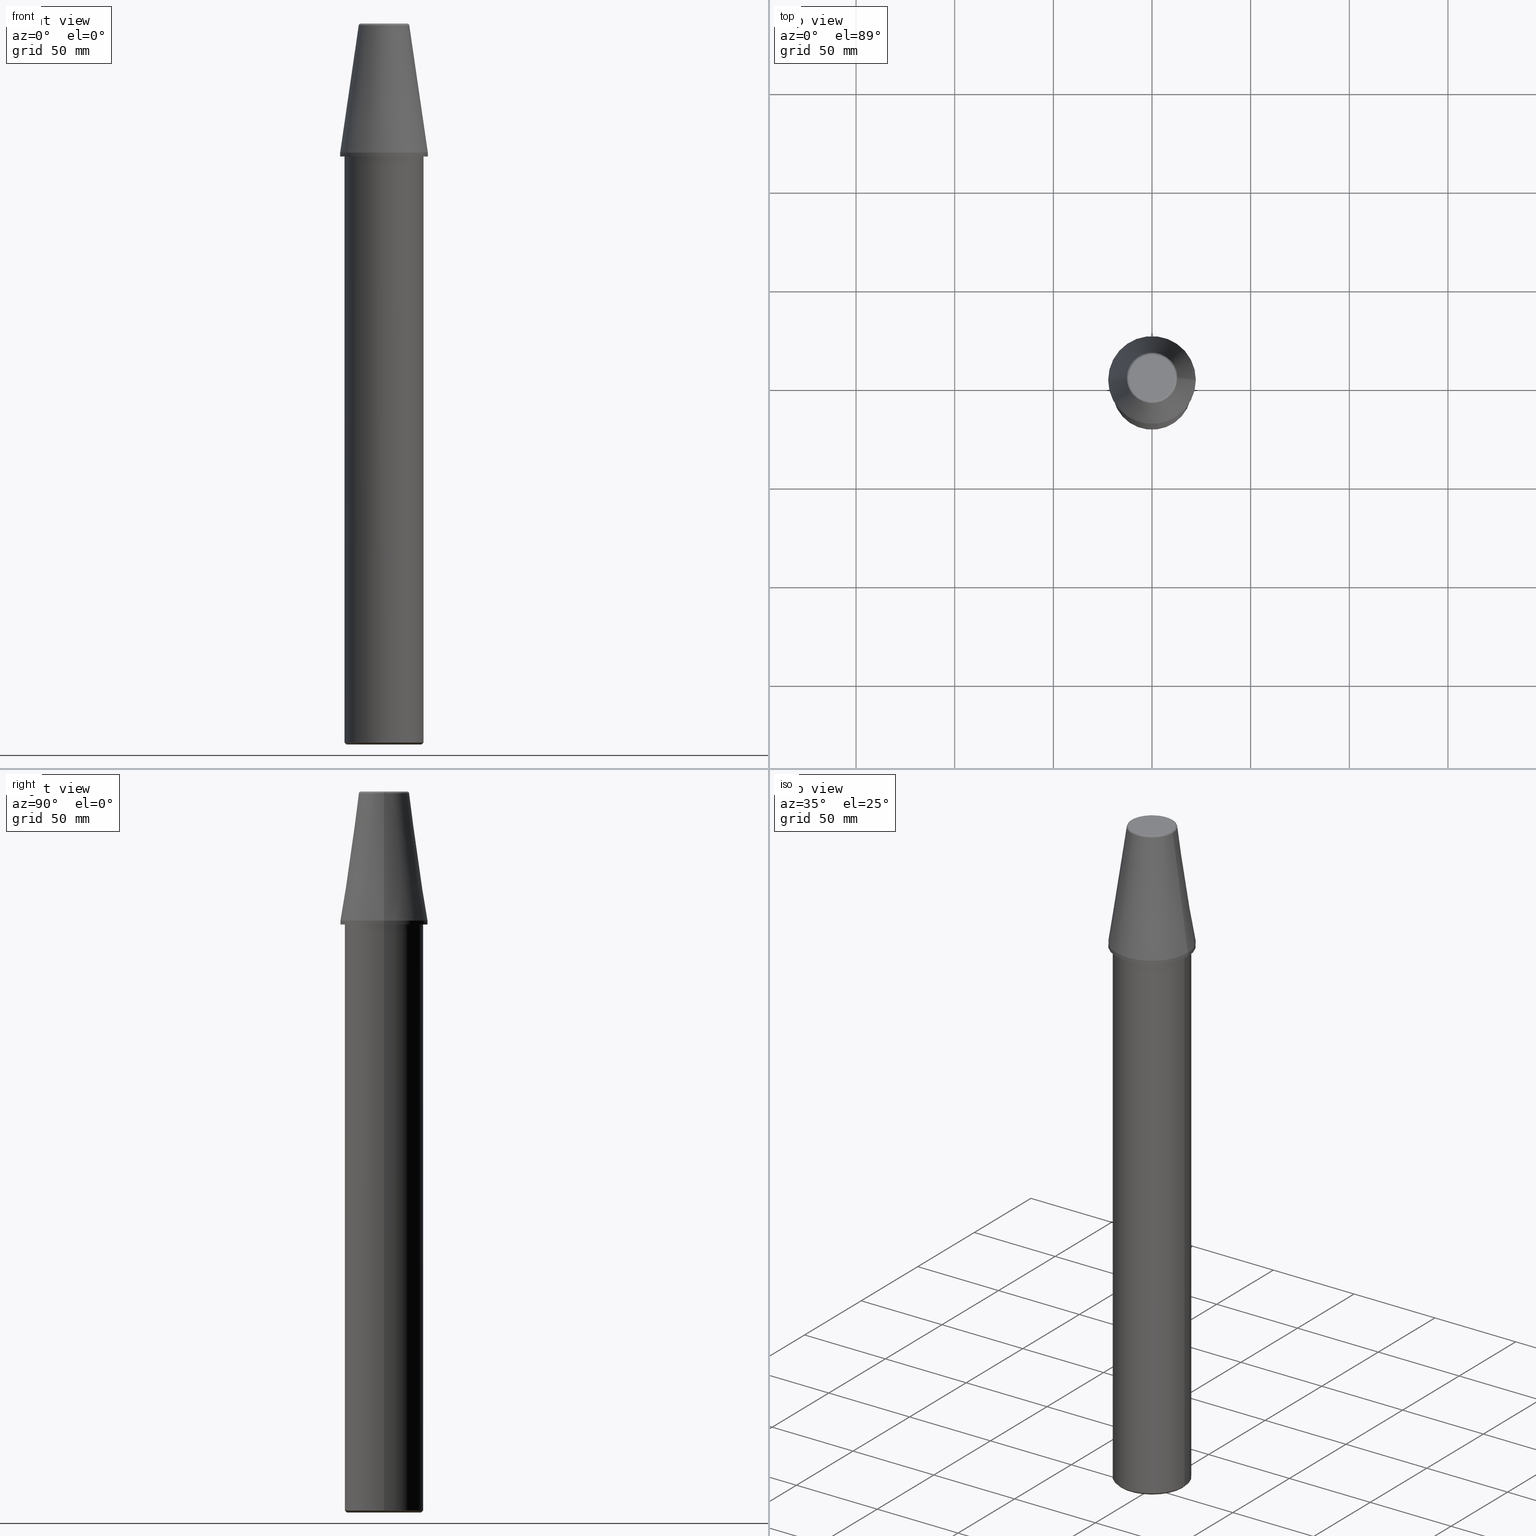
[diagram: canonical four-view strip — front | top / right | iso, engineering-drawing reading convention]
A machine part, canonical four-view strip (front | top / right | iso — engineering-drawing reading convention). The complete STEP part file that produces these views, byte-faithful:
ISO-10303-21;
HEADER;
FILE_DESCRIPTION (( 'STEP AP203' ),
    '1' );
FILE_NAME ('BT40 MASTER MANDRELL DIA 40 L 300.STEP',
    '2019-05-24T06:16:30',
    ( '' ),
    ( '' ),
    'SwSTEP 2.0',
    'SolidWorks 2014',
    '' );
FILE_SCHEMA (( 'CONFIG_CONTROL_DESIGN' ));
ENDSEC;

DATA;
#1 = ORIENTED_EDGE ( 'NONE', *, *, #345, .T. ) ;
#2 = ORIENTED_EDGE ( 'NONE', *, *, #176, .F. ) ;
#3 = LINE ( 'NONE', #332, #277 ) ;
#4 = VECTOR ( 'NONE', #151, 1000.000000000000000 ) ;
#5 = ORIENTED_EDGE ( 'NONE', *, *, #78, .F. ) ;
#6 = CONICAL_SURFACE ( 'NONE', #407, 20.00000000000000000, 0.7853981633974485000 ) ;
#7 = ORIENTED_EDGE ( 'NONE', *, *, #40, .F. ) ;
#8 = CALENDAR_DATE ( 2019, 24, 5 ) ;
#9 = CALENDAR_DATE ( 2019, 24, 5 ) ;
#10 = CONICAL_SURFACE ( 'NONE', #218, 22.22500000000000100, 0.1448138077659779600 ) ;
#11 = ADVANCED_FACE ( 'NONE', ( #112 ), #220, .T. ) ;
#12 = EDGE_CURVE ( 'NONE', #268, #49, #290, .T. ) ;
#13 = PERSON_AND_ORGANIZATION ( #300, #311 ) ;
#14 = ORIENTED_EDGE ( 'NONE', *, *, #236, .F. ) ;
#15 = ORIENTED_EDGE ( 'NONE', *, *, #92, .T. ) ;
#16 = LINE ( 'NONE', #122, #405 ) ;
#17 = VERTEX_POINT ( 'NONE', #385 ) ;
#18 = APPROVAL_ROLE ( '' ) ;
#19 = COORDINATED_UNIVERSAL_TIME_OFFSET ( 5, 30, .AHEAD. ) ;
#20 = APPROVAL_STATUS ( 'not_yet_approved' ) ;
#21 = DESIGN_CONTEXT ( 'detailed design', #48, 'design' ) ;
#22 =( BOUNDED_CURVE ( )  B_SPLINE_CURVE ( 3, ( #379, #180, #285, #376 ),
 .UNSPECIFIED., .F., .F. ) 
 B_SPLINE_CURVE_WITH_KNOTS ( ( 4, 4 ),
 ( 0.06744229189386269400, 0.9325577098212907100 ),
 .UNSPECIFIED. ) 
 CURVE ( )  GEOMETRIC_REPRESENTATION_ITEM ( )  RATIONAL_B_SPLINE_CURVE ( ( 0.9606698244209219700, 0.8046626051633187800, 0.8046626054726142600, 0.9606698253488084000 ) ) 
 REPRESENTATION_ITEM ( '' )  );
#23 = VERTEX_POINT ( 'NONE', #388 ) ;
#24 = DATE_TIME_ROLE ( 'classification_date' ) ;
#25 = FACE_OUTER_BOUND ( 'NONE', #282, .T. ) ;
#26 = CIRCLE ( 'NONE', #162, 20.00000000000000000 ) ;
#27 = UNCERTAINTY_MEASURE_WITH_UNIT (LENGTH_MEASURE( 1.000000000000000100E-005 ), #69, 'distance_accuracy_value', 'NONE');
#28 = PERSON_AND_ORGANIZATION_ROLE ( 'classification_officer' ) ;
#29 = SECURITY_CLASSIFICATION_LEVEL ( 'unclassified' ) ;
#30 = ORIENTED_EDGE ( 'NONE', *, *, #105, .F. ) ;
#31 = PERSON_AND_ORGANIZATION_ROLE ( 'design_supplier' ) ;
#32 = EDGE_LOOP ( 'NONE', ( #79, #411, #173, #90 ) ) ;
#33 = PERSON_AND_ORGANIZATION_ROLE ( 'creator' ) ;
#34 = ORIENTED_EDGE ( 'NONE', *, *, #279, .T. ) ;
#35 = LOCAL_TIME ( 11, 46, 30.00000000000000000, #19 ) ;
#36 = APPROVAL_ROLE ( '' ) ;
#37 = APPROVAL_STATUS ( 'not_yet_approved' ) ;
#38 = VERTEX_POINT ( 'NONE', #384 ) ;
#39 = DATE_TIME_ROLE ( 'creation_date' ) ;
#40 = EDGE_CURVE ( 'NONE', #23, #49, #22, .T. ) ;
#41 = PERSON_AND_ORGANIZATION_ROLE ( 'creator' ) ;
#42 = APPROVAL_PERSON_ORGANIZATION ( #13, #109, #44 ) ;
#43 = FACE_OUTER_BOUND ( 'NONE', #159, .T. ) ;
#44 = APPROVAL_ROLE ( '' ) ;
#45 = APPROVAL_STATUS ( 'not_yet_approved' ) ;
#46 = ADVANCED_FACE ( 'NONE', ( #154 ), #395, .T. ) ;
#47 = APPLICATION_PROTOCOL_DEFINITION ( 'international standard', 'config_control_design', 1994, #48 ) ;
#48 = APPLICATION_CONTEXT ( 'configuration controlled 3d designs of mechanical parts and assemblies' ) ;
#49 = VERTEX_POINT ( 'NONE', #366 ) ;
#50 = CYLINDRICAL_SURFACE ( 'NONE', #423, 20.00000000000000000 ) ;
#51 = PERSON_AND_ORGANIZATION_ROLE ( 'design_owner' ) ;
#52 = MECHANICAL_CONTEXT ( 'NONE', #58, 'mechanical' ) ;
#53 = DIRECTION ( 'NONE',  ( -1.000000000000000000, 0.0000000000000000000, 0.0000000000000000000 ) ) ;
#54 = VECTOR ( 'NONE', #207, 1000.000000000000000 ) ;
#55 = DATE_AND_TIME ( #264, #35 ) ;
#56 = DIRECTION ( 'NONE',  ( 1.000000000000000000, 0.0000000000000000000, 0.0000000000000000000 ) ) ;
#57 = VECTOR ( 'NONE', #350, 999.9999999999998900 ) ;
#58 = APPLICATION_CONTEXT ( 'configuration controlled 3d designs of mechanical parts and assemblies' ) ;
#59 = PERSON_AND_ORGANIZATION ( #300, #311 ) ;
#60 = APPLICATION_PROTOCOL_DEFINITION ( 'international standard', 'config_control_design', 1994, #58 ) ;
#61 = ORIENTED_EDGE ( 'NONE', *, *, #382, .F. ) ;
#62 =( NAMED_UNIT ( * ) SI_UNIT ( $, .STERADIAN. ) SOLID_ANGLE_UNIT ( ) );
#63 = VERTEX_POINT ( 'NONE', #135 ) ;
#64 =( NAMED_UNIT ( * ) PLANE_ANGLE_UNIT ( ) SI_UNIT ( $, .RADIAN. ) );
#65 = ORIENTED_EDGE ( 'NONE', *, *, #386, .T. ) ;
#66 = CIRCLE ( 'NONE', #427, 12.81220206894352900 ) ;
#67 = CARTESIAN_POINT ( 'NONE',  ( 0.0000000000000000000, 0.0000000000000000000, 1.000000000000000400 ) ) ;
#68 = APPROVAL_DATE_TIME ( #55, #125 ) ;
#69 =( LENGTH_UNIT ( ) NAMED_UNIT ( * ) SI_UNIT ( .MILLI., .METRE. ) );
#70 = CIRCLE ( 'NONE', #187, 22.22499999999999800 ) ;
#71 = ORIENTED_EDGE ( 'NONE', *, *, #76, .T. ) ;
#72 = DIRECTION ( 'NONE',  ( -1.000000000000000000, 0.0000000000000000000, 0.0000000000000000000 ) ) ;
#73 = DIRECTION ( 'NONE',  ( 0.0000000000000000000, 0.0000000000000000000, -1.000000000000000000 ) ) ;
#74 = CARTESIAN_POINT ( 'NONE',  ( 0.0000000000000000000, 0.0000000000000000000, 300.0000000000000600 ) ) ;
#75 = COORDINATED_UNIVERSAL_TIME_OFFSET ( 5, 30, .AHEAD. ) ;
#76 = EDGE_CURVE ( 'NONE', #49, #268, #93, .T. ) ;
#77 = CARTESIAN_POINT ( 'NONE',  ( 0.0000000000000000000, 0.0000000000000000000, 298.0000000000000000 ) ) ;
#78 = EDGE_CURVE ( 'NONE', #215, #342, #168, .T. ) ;
#79 = ORIENTED_EDGE ( 'NONE', *, *, #176, .T. ) ;
#80 = CARTESIAN_POINT ( 'NONE',  ( -12.81220206913550700, 0.0000000000000000000, 364.5443081893797600 ) ) ;
#81 = CARTESIAN_POINT ( 'NONE',  ( -12.73707373894168000, 0.0000000000000000000, 365.0594691596318200 ) ) ;
#82 = ADVANCED_FACE ( 'NONE', ( #138 ), #254, .T. ) ;
#83 = AXIS2_PLACEMENT_3D ( 'NONE', #360, #348, #367 ) ;
#84 = CARTESIAN_POINT ( 'NONE',  ( -11.82266927519743800, 0.0000000000000000000, 365.3999999998375200 ) ) ;
#85 = VECTOR ( 'NONE', #170, 999.9999999999998900 ) ;
#86 = CARTESIAN_POINT ( 'NONE',  ( 22.22499999999999400, 2.721777511104991700E-015, 300.0000000000000600 ) ) ;
#87 = EDGE_CURVE ( 'NONE', #413, #325, #416, .T. ) ;
#88 = CARTESIAN_POINT ( 'NONE',  ( 0.0000000000000000000, 0.0000000000000000000, 0.0000000000000000000 ) ) ;
#89 = FACE_OUTER_BOUND ( 'NONE', #328, .T. ) ;
#90 = ORIENTED_EDGE ( 'NONE', *, *, #95, .F. ) ;
#91 = CARTESIAN_POINT ( 'NONE',  ( -12.34327958154977800, 0.0000000000000000000, 365.4000000010086600 ) ) ;
#92 = EDGE_CURVE ( 'NONE', #315, #63, #419, .T. ) ;
#93 =( BOUNDED_CURVE ( )  B_SPLINE_CURVE ( 3, ( #372, #362, #357, #356 ),
 .UNSPECIFIED., .F., .F. ) 
 B_SPLINE_CURVE_WITH_KNOTS ( ( 4, 4 ),
 ( 0.0000000000000000000, 1.000000000000000000 ),
 .UNSPECIFIED. ) 
 CURVE ( )  GEOMETRIC_REPRESENTATION_ITEM ( )  RATIONAL_B_SPLINE_CURVE ( ( 0.9606698253833687600, 0.3202232751277893100, 0.3202232751277893100, 0.9606698253833687600 ) ) 
 REPRESENTATION_ITEM ( '' )  );
#94 = DIRECTION ( 'NONE',  ( 0.0000000000000000000, 0.0000000000000000000, -1.000000000000000000 ) ) ;
#95 = EDGE_CURVE ( 'NONE', #17, #325, #3, .T. ) ;
#96 = CARTESIAN_POINT ( 'NONE',  ( 11.72283586100000000, 0.0000000000000000000, 365.3950041649999900 ) ) ;
#97 = LINE ( 'NONE', #146, #4 ) ;
#98 = CARTESIAN_POINT ( 'NONE',  ( 11.72283586100000000, 23.44567172100000700, 365.3950041649999900 ) ) ;
#99 =( BOUNDED_CURVE ( )  B_SPLINE_CURVE ( 3, ( #84, #91, #81, #80 ),
 .UNSPECIFIED., .F., .T. ) 
 B_SPLINE_CURVE_WITH_KNOTS ( ( 4, 4 ),
 ( 0.06744229017870560800, 0.9325577080596414400 ),
 .UNSPECIFIED. ) 
 CURVE ( )  GEOMETRIC_REPRESENTATION_ITEM ( )  RATIONAL_B_SPLINE_CURVE ( ( 0.9606698254473287100, 0.8046626055635183200, 0.8046626052458375500, 0.9606698244942861700 ) ) 
 REPRESENTATION_ITEM ( '' )  );
#100 = CARTESIAN_POINT ( 'NONE',  ( -11.72283586100000000, 23.44567172100000700, 365.3950041649999900 ) ) ;
#101 = CARTESIAN_POINT ( 'NONE',  ( -11.72283586100000000, 0.0000000000000000000, 365.3950041649999900 ) ) ;
#102 = AXIS2_PLACEMENT_3D ( 'NONE', #335, #334, #333 ) ;
#103 = CARTESIAN_POINT ( 'NONE',  ( 12.33152797700000600, 0.0000000000000000000, 365.4560770889999600 ) ) ;
#104 = CARTESIAN_POINT ( 'NONE',  ( 12.33152797699999900, 24.66305595500000800, 365.4560770889999600 ) ) ;
#105 = EDGE_CURVE ( 'NONE', #342, #396, #370, .T. ) ;
#106 = EDGE_CURVE ( 'NONE', #409, #38, #70, .T. ) ;
#107 = PERSON_AND_ORGANIZATION ( #300, #311 ) ;
#108 = CARTESIAN_POINT ( 'NONE',  ( -12.33152797700000600, 0.0000000000000000000, 365.4560770889999600 ) ) ;
#109 = APPROVAL ( #45, 'UNSPECIFIED' ) ;
#110 = CARTESIAN_POINT ( 'NONE',  ( 12.79425971100000400, 0.0000000000000000000, 365.0559329419999700 ) ) ;
#111 = CARTESIAN_POINT ( 'NONE',  ( 12.79425971099999900, 25.58851942100000800, 365.0559329419998600 ) ) ;
#112 = FACE_OUTER_BOUND ( 'NONE', #260, .T. ) ;
#113 = CARTESIAN_POINT ( 'NONE',  ( -12.79425971099999900, 25.58851942100000800, 365.0559329419998600 ) ) ;
#114 = PERSON_AND_ORGANIZATION ( #300, #311 ) ;
#115 = CARTESIAN_POINT ( 'NONE',  ( -12.79425971100000400, 0.0000000000000000000, 365.0559329419999700 ) ) ;
#116 = CARTESIAN_POINT ( 'NONE',  ( 12.82166530700000000, 0.0000000000000000000, 364.4447988100000100 ) ) ;
#117 = CARTESIAN_POINT ( 'NONE',  ( 12.82166530699999800, 25.64333061300000000, 364.4447988100000100 ) ) ;
#118 = PRODUCT_DEFINITION ( 'UNKNOWN', '', #147, #21 ) ;
#119 = CARTESIAN_POINT ( 'NONE',  ( -12.82166530699999800, 25.64333061300000000, 364.4447988100000100 ) ) ;
#120 = CC_DESIGN_PERSON_AND_ORGANIZATION_ASSIGNMENT ( #397, #41, ( #118 ) ) ;
#121 = DIRECTION ( 'NONE',  ( 0.0000000000000000000, 0.0000000000000000000, -1.000000000000000000 ) ) ;
#122 = CARTESIAN_POINT ( 'NONE',  ( -22.22499999999999800, 0.0000000000000000000, 300.0000000000000000 ) ) ;
#123 = ORIENTED_EDGE ( 'NONE', *, *, #336, .F. ) ;
#124 = CARTESIAN_POINT ( 'NONE',  ( 20.00000000000000000, 0.0000000000000000000, 1.000000000000000900 ) ) ;
#125 = APPROVAL ( #37, 'UNSPECIFIED' ) ;
#126 = ORIENTED_EDGE ( 'NONE', *, *, #95, .T. ) ;
#127 = CYLINDRICAL_SURFACE ( 'NONE', #283, 20.00000000000000000 ) ;
#128 = AXIS2_PLACEMENT_3D ( 'NONE', #206, #205, #203 ) ;
#129 = CARTESIAN_POINT ( 'NONE',  ( 22.22499999999999800, 2.721777511104992500E-015, 297.9999999999999400 ) ) ;
#130 = ADVANCED_FACE ( 'NONE', ( #424 ), #324, .T. ) ;
#131 = CALENDAR_DATE ( 2019, 24, 5 ) ;
#132 = FACE_BOUND ( 'NONE', #417, .T. ) ;
#133 = CARTESIAN_POINT ( 'NONE',  ( -12.82166530700000000, 0.0000000000000000000, 364.4447988100000100 ) ) ;
#134 = DIRECTION ( 'NONE',  ( -1.000000000000000000, 0.0000000000000000000, 0.0000000000000000000 ) ) ;
#135 = CARTESIAN_POINT ( 'NONE',  ( -20.00000000000000000, 0.0000000000000000000, 297.9999999999999400 ) ) ;
#136 = DIRECTION ( 'NONE',  ( 0.0000000000000000000, 0.0000000000000000000, -1.000000000000000000 ) ) ;
#137 = DIRECTION ( 'NONE',  ( 1.000000000000000000, 0.0000000000000000000, 0.0000000000000000000 ) ) ;
#138 = FACE_OUTER_BOUND ( 'NONE', #406, .T. ) ;
#139 = EDGE_CURVE ( 'NONE', #396, #342, #421, .T. ) ;
#140 = EDGE_LOOP ( 'NONE', ( #364, #242 ) ) ;
#141 = DIRECTION ( 'NONE',  ( 0.0000000000000000000, 0.0000000000000000000, 1.000000000000000000 ) ) ;
#142 = CARTESIAN_POINT ( 'NONE',  ( 0.0000000000000000000, 0.0000000000000000000, 0.0000000000000000000 ) ) ;
#143 = CIRCLE ( 'NONE', #422, 22.22499999999999800 ) ;
#144 = ORIENTED_EDGE ( 'NONE', *, *, #139, .T. ) ;
#145 = CARTESIAN_POINT ( 'NONE',  ( 0.0000000000000000000, 0.0000000000000000000, 300.0000000000000000 ) ) ;
#146 = CARTESIAN_POINT ( 'NONE',  ( 22.22499999999999800, 2.721777511104992500E-015, 300.0000000000000000 ) ) ;
#147 = PRODUCT_DEFINITION_FORMATION_WITH_SPECIFIED_SOURCE ( 'ANY', '', #222, .NOT_KNOWN. ) ;
#148 = ORIENTED_EDGE ( 'NONE', *, *, #78, .T. ) ;
#149 = VECTOR ( 'NONE', #303, 1000.000000000000100 ) ;
#150 = LOCAL_TIME ( 11, 46, 30.00000000000000000, #352 ) ;
#151 = DIRECTION ( 'NONE',  ( 0.0000000000000000000, 0.0000000000000000000, -1.000000000000000000 ) ) ;
#152 = LINE ( 'NONE', #183, #85 ) ;
#153 = AXIS2_PLACEMENT_3D ( 'NONE', #202, #213, #201 ) ;
#154 = FACE_OUTER_BOUND ( 'NONE', #361, .T. ) ;
#155 = DIRECTION ( 'NONE',  ( -1.000000000000000000, 0.0000000000000000000, -0.0000000000000000000 ) ) ;
#156 = ORIENTED_EDGE ( 'NONE', *, *, #167, .F. ) ;
#157 = AXIS2_PLACEMENT_3D ( 'NONE', #298, #297, #296 ) ;
#158 = DIRECTION ( 'NONE',  ( 0.0000000000000000000, 0.0000000000000000000, -1.000000000000000000 ) ) ;
#159 = EDGE_LOOP ( 'NONE', ( #217, #65, #371, #408 ) ) ;
#160 = DIRECTION ( 'NONE',  ( -1.000000000000000000, 0.0000000000000000000, 0.0000000000000000000 ) ) ;
#161 = CC_DESIGN_PERSON_AND_ORGANIZATION_ASSIGNMENT ( #190, #28, ( #169 ) ) ;
#162 = AXIS2_PLACEMENT_3D ( 'NONE', #178, #177, #175 ) ;
#163 = DIRECTION ( 'NONE',  ( 0.0000000000000000000, 0.0000000000000000000, -1.000000000000000000 ) ) ;
#164 = EDGE_LOOP ( 'NONE', ( #306, #7, #2, #245 ) ) ;
#165 = CARTESIAN_POINT ( 'NONE',  ( 0.0000000000000000000, 0.0000000000000000000, 364.5443081893178000 ) ) ;
#166 = PLANE ( 'NONE',  #351 ) ;
#167 = EDGE_CURVE ( 'NONE', #23, #413, #250, .T. ) ;
#168 = LINE ( 'NONE', #354, #57 ) ;
#169 = SECURITY_CLASSIFICATION ( '', '', #29 ) ;
#170 = DIRECTION ( 'NONE',  ( 0.7071067811865477900, 0.0000000000000000000, 0.7071067811865473500 ) ) ;
#171 = AXIS2_PLACEMENT_3D ( 'NONE', #142, #141, #137 ) ;
#172 = ADVANCED_FACE ( 'NONE', ( #229 ), #6, .T. ) ;
#173 = ORIENTED_EDGE ( 'NONE', *, *, #431, .F. ) ;
#174 = PRODUCT_DEFINITION_SHAPE ( 'NONE', 'NONE',  #118 ) ;
#175 = DIRECTION ( 'NONE',  ( -1.000000000000000000, 0.0000000000000000000, 0.0000000000000000000 ) ) ;
#176 = EDGE_CURVE ( 'NONE', #17, #23, #66, .T. ) ;
#177 = DIRECTION ( 'NONE',  ( 0.0000000000000000000, 0.0000000000000000000, -1.000000000000000000 ) ) ;
#178 = CARTESIAN_POINT ( 'NONE',  ( 0.0000000000000000000, 0.0000000000000000000, 297.9999999999999400 ) ) ;
#179 = AXIS2_PLACEMENT_3D ( 'NONE', #322, #320, #317 ) ;
#180 = CARTESIAN_POINT ( 'NONE',  ( 12.73707373898400500, -1.306208746514867000E-009, 365.0594691595952100 ) ) ;
#181 = CC_DESIGN_PERSON_AND_ORGANIZATION_ASSIGNMENT ( #358, #33, ( #147 ) ) ;
#182 = CC_DESIGN_DATE_AND_TIME_ASSIGNMENT ( #200, #39, ( #118 ) ) ;
#183 = CARTESIAN_POINT ( 'NONE',  ( 20.00000000000000000, 0.0000000000000000000, 1.000000000000000400 ) ) ;
#184 = ORIENTED_EDGE ( 'NONE', *, *, #345, .F. ) ;
#185 = DIRECTION ( 'NONE',  ( -1.000000000000000000, 0.0000000000000000000, 0.0000000000000000000 ) ) ;
#186 = DIRECTION ( 'NONE',  ( 0.0000000000000000000, 0.0000000000000000000, -1.000000000000000000 ) ) ;
#187 = AXIS2_PLACEMENT_3D ( 'NONE', #314, #313, #309 ) ;
#188 = CARTESIAN_POINT ( 'NONE',  ( 0.0000000000000000000, 0.0000000000000000000, 297.9999999999999400 ) ) ;
#189 = CC_DESIGN_APPROVAL ( #125, ( #147 ) ) ;
#190 = PERSON_AND_ORGANIZATION ( #300, #311 ) ;
#191 = CARTESIAN_POINT ( 'NONE',  ( -22.22499999999999400, 0.0000000000000000000, 300.0000000000000600 ) ) ;
#192 = CC_DESIGN_PERSON_AND_ORGANIZATION_ASSIGNMENT ( #59, #31, ( #147 ) ) ;
#193 = EDGE_LOOP ( 'NONE', ( #61, #318 ) ) ;
#194 = LOCAL_TIME ( 11, 46, 30.00000000000000000, #415 ) ;
#195 = CARTESIAN_POINT ( 'NONE',  ( 22.49170000000000200, -22.49170000000000200, 298.0000000000000000 ) ) ;
#196 = CYLINDRICAL_SURFACE ( 'NONE', #153, 22.22499999999999800 ) ;
#197 = CARTESIAN_POINT ( 'NONE',  ( -20.00000000000000000, 2.449293598294706500E-015, 1.000000000000000900 ) ) ;
#198 = APPROVAL ( #20, 'UNSPECIFIED' ) ;
#199 = CARTESIAN_POINT ( 'NONE',  ( 20.00000000000000000, 2.449293598294706500E-015, 297.9999999999999400 ) ) ;
#200 = DATE_AND_TIME ( #8, #304 ) ;
#201 = DIRECTION ( 'NONE',  ( -1.000000000000000000, 0.0000000000000000000, 0.0000000000000000000 ) ) ;
#202 = CARTESIAN_POINT ( 'NONE',  ( 0.0000000000000000000, 0.0000000000000000000, 300.0000000000000000 ) ) ;
#203 = DIRECTION ( 'NONE',  ( 1.000000000000000000, 0.0000000000000000000, 0.0000000000000000000 ) ) ;
#204 = ADVANCED_FACE ( 'NONE', ( #263 ), #208, .T. ) ;
#205 = DIRECTION ( 'NONE',  ( 0.0000000000000000000, 0.0000000000000000000, 1.000000000000000000 ) ) ;
#206 = CARTESIAN_POINT ( 'NONE',  ( 0.0000000000000000000, 0.0000000000000000000, 0.0000000000000000000 ) ) ;
#207 = DIRECTION ( 'NONE',  ( 0.0000000000000000000, 0.0000000000000000000, -1.000000000000000000 ) ) ;
#208 = CYLINDRICAL_SURFACE ( 'NONE', #301, 22.22499999999999800 ) ;
#209 = CC_DESIGN_DATE_AND_TIME_ASSIGNMENT ( #244, #24, ( #169 ) ) ;
#210 = CARTESIAN_POINT ( 'NONE',  ( -20.00000000000000000, 0.0000000000000000000, 298.0000000000000000 ) ) ;
#211 = FACE_OUTER_BOUND ( 'NONE', #339, .T. ) ;
#212 = CC_DESIGN_APPROVAL ( #198, ( #169 ) ) ;
#213 = DIRECTION ( 'NONE',  ( 0.0000000000000000000, 0.0000000000000000000, -1.000000000000000000 ) ) ;
#214 = SHAPE_DEFINITION_REPRESENTATION ( #174, #394 ) ;
#215 = VERTEX_POINT ( 'NONE', #271 ) ;
#216 = CC_DESIGN_SECURITY_CLASSIFICATION ( #169, ( #147 ) ) ;
#217 = ORIENTED_EDGE ( 'NONE', *, *, #431, .T. ) ;
#218 = AXIS2_PLACEMENT_3D ( 'NONE', #145, #136, #134 ) ;
#219 = CIRCLE ( 'NONE', #128, 19.00000000000000000 ) ;
#220 = CONICAL_SURFACE ( 'NONE', #312, 22.22500000000000100, 0.1448138077659779600 ) ;
#221 = CARTESIAN_POINT ( 'NONE',  ( -11.72283586100000000, 0.0000000000000000000, 365.3950041649999900 ) ) ;
#222 = PRODUCT ( 'BT40 MASTER MANDRELL DIA 40 L 300', 'BT40 MASTER MANDRELL DIA 40 L 300', '', ( #52 ) ) ;
#223 = CARTESIAN_POINT ( 'NONE',  ( -11.72283586100000000, -23.44567172100000700, 365.3950041649999900 ) ) ;
#224 = ORIENTED_EDGE ( 'NONE', *, *, #87, .T. ) ;
#225 = CARTESIAN_POINT ( 'NONE',  ( 11.72283586100000000, -23.44567172100000700, 365.3950041649999900 ) ) ;
#226 = PRODUCT_RELATED_PRODUCT_CATEGORY ( 'detail', '', ( #222 ) ) ;
#227 = CARTESIAN_POINT ( 'NONE',  ( 11.72283586100000000, 0.0000000000000000000, 365.3950041649999900 ) ) ;
#228 = CARTESIAN_POINT ( 'NONE',  ( -12.33152797700000600, 0.0000000000000000000, 365.4560770889999600 ) ) ;
#229 = FACE_OUTER_BOUND ( 'NONE', #383, .T. ) ;
#230 = CARTESIAN_POINT ( 'NONE',  ( -12.33152797699999900, -24.66305595500000800, 365.4560770889999600 ) ) ;
#231 = CARTESIAN_POINT ( 'NONE',  ( 12.33152797699999900, -24.66305595500000800, 365.4560770889999600 ) ) ;
#232 = DATE_AND_TIME ( #131, #150 ) ;
#233 = FACE_OUTER_BOUND ( 'NONE', #140, .T. ) ;
#234 = CARTESIAN_POINT ( 'NONE',  ( 12.33152797700000600, 0.0000000000000000000, 365.4560770889999600 ) ) ;
#235 = CARTESIAN_POINT ( 'NONE',  ( -12.79425971100000400, 0.0000000000000000000, 365.0559329419999700 ) ) ;
#236 = EDGE_CURVE ( 'NONE', #315, #396, #365, .T. ) ;
#237 = CARTESIAN_POINT ( 'NONE',  ( -12.79425971099999900, -25.58851942100000800, 365.0559329419998600 ) ) ;
#238 = ADVANCED_FACE ( 'NONE', ( #89 ), #127, .T. ) ;
#239 = CARTESIAN_POINT ( 'NONE',  ( 12.79425971099999900, -25.58851942100000800, 365.0559329419998600 ) ) ;
#240 = CARTESIAN_POINT ( 'NONE',  ( 12.79425971100000400, 0.0000000000000000000, 365.0559329419999700 ) ) ;
#241 = LOCAL_TIME ( 11, 46, 30.00000000000000000, #75 ) ;
#242 = ORIENTED_EDGE ( 'NONE', *, *, #106, .T. ) ;
#243 = CARTESIAN_POINT ( 'NONE',  ( -12.82166530700000000, 0.0000000000000000000, 364.4447988100000100 ) ) ;
#244 = DATE_AND_TIME ( #377, #241 ) ;
#245 = ORIENTED_EDGE ( 'NONE', *, *, #429, .F. ) ;
#246 = APPROVAL_PERSON_ORGANIZATION ( #114, #125, #36 ) ;
#247 = VERTEX_POINT ( 'NONE', #251 ) ;
#248 = CARTESIAN_POINT ( 'NONE',  ( -12.82166530699999800, -25.64333061300000000, 364.4447988100000100 ) ) ;
#249 = ORIENTED_EDGE ( 'NONE', *, *, #347, .F. ) ;
#250 = LINE ( 'NONE', #353, #149 ) ;
#251 = CARTESIAN_POINT ( 'NONE',  ( 19.00000000000000000, 0.0000000000000000000, 0.0000000000000000000 ) ) ;
#252 = CARTESIAN_POINT ( 'NONE',  ( 12.82166530700000000, 0.0000000000000000000, 364.4447988100000100 ) ) ;
#253 = CARTESIAN_POINT ( 'NONE',  ( -11.82266927519743800, 0.0000000000000000000, 365.3999999998375200 ) ) ;
#254 = CONICAL_SURFACE ( 'NONE', #83, 20.00000000000000000, 0.7853981633974485000 ) ;
#255 = DIRECTION ( 'NONE',  ( -1.000000000000000000, 0.0000000000000000000, 0.0000000000000000000 ) ) ;
#256 = ORIENTED_EDGE ( 'NONE', *, *, #386, .F. ) ;
#257 = CARTESIAN_POINT ( 'NONE',  ( 0.0000000000000000000, 0.0000000000000000000, 298.0000000000000000 ) ) ;
#258 = DIRECTION ( 'NONE',  ( 0.0000000000000000000, 0.0000000000000000000, -1.000000000000000000 ) ) ;
#259 = ORIENTED_EDGE ( 'NONE', *, *, #106, .F. ) ;
#260 = EDGE_LOOP ( 'NONE', ( #156, #412, #126, #414 ) ) ;
#261 = DIRECTION ( 'NONE',  ( 0.0000000000000000000, 0.0000000000000000000, -1.000000000000000000 ) ) ;
#262 = CLOSED_SHELL ( 'NONE', ( #430, #82, #288, #389, #238, #172, #359, #130, #204, #11, #278, #410, #46 ) ) ;
#263 = FACE_OUTER_BOUND ( 'NONE', #428, .T. ) ;
#264 = CALENDAR_DATE ( 2019, 24, 5 ) ;
#265 = CARTESIAN_POINT ( 'NONE',  ( 20.00000000000000000, 2.449293598294706500E-015, 298.0000000000000000 ) ) ;
#266 =( BOUNDED_SURFACE ( )  B_SPLINE_SURFACE ( 3, 3, ( 
 ( #133, #119, #117, #116 ),
 ( #115, #113, #111, #110 ),
 ( #108, #319, #104, #103 ),
 ( #101, #100, #98, #96 ) ),
 .UNSPECIFIED., .F., .F., .F. ) 
 B_SPLINE_SURFACE_WITH_KNOTS ( ( 4, 4 ),
 ( 4, 4 ),
 ( 0.0000000000000000000, 1.000000000000000000 ),
 ( 0.0000000000000000000, 1.000000000000000000 ),
 .UNSPECIFIED. ) 
 GEOMETRIC_REPRESENTATION_ITEM ( )  RATIONAL_B_SPLINE_SURFACE ( (
 ( 1.000000000000000000, 0.3333333333333330400, 0.3333333333333330400, 1.000000000000000000),
 ( 0.7915525470616138200, 0.2638508490205380100, 0.2638508490205380100, 0.7915525470616138200),
 ( 0.7915525470616138200, 0.2638508490205380100, 0.2638508490205380100, 0.7915525470616138200),
 ( 1.000000000000000000, 0.3333333333333330400, 0.3333333333333330400, 1.000000000000000000) ) ) 
 REPRESENTATION_ITEM ( '' )  SURFACE ( )  );
#267 = CC_DESIGN_APPROVAL ( #109, ( #118 ) ) ;
#268 = VERTEX_POINT ( 'NONE', #253 ) ;
#269 = ORIENTED_EDGE ( 'NONE', *, *, #12, .F. ) ;
#270 = AXIS2_PLACEMENT_3D ( 'NONE', #188, #186, #185 ) ;
#271 = CARTESIAN_POINT ( 'NONE',  ( -19.00000000000000000, 2.388061258337338900E-015, 0.0000000000000000000 ) ) ;
#272 = DIRECTION ( 'NONE',  ( -1.000000000000000000, 0.0000000000000000000, 0.0000000000000000000 ) ) ;
#273 = DIRECTION ( 'NONE',  ( 0.0000000000000000000, 0.0000000000000000000, -1.000000000000000000 ) ) ;
#274 = AXIS2_PLACEMENT_3D ( 'NONE', #165, #163, #160 ) ;
#275 = CARTESIAN_POINT ( 'NONE',  ( 0.0000000000000000000, 0.0000000000000000000, 364.5443081893873200 ) ) ;
#276 = CARTESIAN_POINT ( 'NONE',  ( 0.0000000000000000000, 0.0000000000000000000, 300.0000000000000000 ) ) ;
#277 = VECTOR ( 'NONE', #346, 1000.000000000000100 ) ;
#278 = ADVANCED_FACE ( 'NONE', ( #25 ), #381, .T. ) ;
#279 = EDGE_CURVE ( 'NONE', #215, #247, #219, .T. ) ;
#280 = DIRECTION ( 'NONE',  ( -1.000000000000000000, 0.0000000000000000000, 0.0000000000000000000 ) ) ;
#281 = ORIENTED_EDGE ( 'NONE', *, *, #40, .T. ) ;
#282 = EDGE_LOOP ( 'NONE', ( #281, #71, #337, #249 ) ) ;
#283 = AXIS2_PLACEMENT_3D ( 'NONE', #257, #261, #255 ) ;
#284 = CARTESIAN_POINT ( 'NONE',  ( 12.82166530699999800, -25.64333061300000000, 364.4447988100000100 ) ) ;
#285 = CARTESIAN_POINT ( 'NONE',  ( 12.34327958158318400, -1.265824480679714800E-009, 365.4000000010084900 ) ) ;
#286 = LINE ( 'NONE', #210, #54 ) ;
#287 = EDGE_CURVE ( 'NONE', #63, #342, #286, .T. ) ;
#288 = ADVANCED_FACE ( 'NONE', ( #43 ), #196, .T. ) ;
#289 = AXIS2_PLACEMENT_3D ( 'NONE', #374, #369, #368 ) ;
#290 =( BOUNDED_CURVE ( )  B_SPLINE_CURVE ( 3, ( #403, #402, #391, #387 ),
 .UNSPECIFIED., .F., .F. ) 
 B_SPLINE_CURVE_WITH_KNOTS ( ( 4, 4 ),
 ( 0.0000000000000000000, 1.000000000000000000 ),
 .UNSPECIFIED. ) 
 CURVE ( )  GEOMETRIC_REPRESENTATION_ITEM ( )  RATIONAL_B_SPLINE_CURVE ( ( 0.9606698253833690900, 0.3202232751277894800, 0.3202232751277894800, 0.9606698253833690900 ) ) 
 REPRESENTATION_ITEM ( '' )  );
#291 = COORDINATED_UNIVERSAL_TIME_OFFSET ( 5, 30, .AHEAD. ) ;
#292 = DIRECTION ( 'NONE',  ( 0.0000000000000000000, 0.0000000000000000000, -1.000000000000000000 ) ) ;
#293 = DIRECTION ( 'NONE',  ( 1.000000000000000000, 0.0000000000000000000, 0.0000000000000000000 ) ) ;
#294 = EDGE_CURVE ( 'NONE', #38, #409, #341, .T. ) ;
#295 = DIRECTION ( 'NONE',  ( 0.0000000000000000000, 0.0000000000000000000, 1.000000000000000000 ) ) ;
#296 = DIRECTION ( 'NONE',  ( -1.000000000000000000, 0.0000000000000000000, 0.0000000000000000000 ) ) ;
#297 = DIRECTION ( 'NONE',  ( -0.0000000000000000000, -0.0000000000000000000, 1.000000000000000000 ) ) ;
#298 = CARTESIAN_POINT ( 'NONE',  ( 0.0000000000000000000, 0.0000000000000000000, 1.000000000000000900 ) ) ;
#299 = FACE_OUTER_BOUND ( 'NONE', #32, .T. ) ;
#300 = PERSON ( 'UNSPECIFIED', 'UNSPECIFIED', 'UNSPECIFIED', ('UNSPECIFIED'), ('UNSPECIFIED'), ('UNSPECIFIED') ) ;
#301 = AXIS2_PLACEMENT_3D ( 'NONE', #276, #292, #280 ) ;
#302 = ORIENTED_EDGE ( 'NONE', *, *, #92, .F. ) ;
#303 = DIRECTION ( 'NONE',  ( 0.1443081888917994200, 1.767265616170938000E-017, -0.9895327920886546300 ) ) ;
#304 = LOCAL_TIME ( 11, 46, 30.00000000000000000, #291 ) ;
#305 = APPROVAL_DATE_TIME ( #398, #198 ) ;
#306 = ORIENTED_EDGE ( 'NONE', *, *, #12, .T. ) ;
#307 = DIRECTION ( 'NONE',  ( -1.000000000000000000, 0.0000000000000000000, -0.0000000000000000000 ) ) ;
#308 = DIRECTION ( 'NONE',  ( 0.0000000000000000000, 0.0000000000000000000, -1.000000000000000000 ) ) ;
#309 = DIRECTION ( 'NONE',  ( -1.000000000000000000, 0.0000000000000000000, 0.0000000000000000000 ) ) ;
#310 = CIRCLE ( 'NONE', #274, 12.81220206895366700 ) ;
#311 = ORGANIZATION ( 'UNSPECIFIED', 'UNSPECIFIED', '' ) ;
#312 = AXIS2_PLACEMENT_3D ( 'NONE', #399, #400, #393 ) ;
#313 = DIRECTION ( 'NONE',  ( 0.0000000000000000000, 0.0000000000000000000, -1.000000000000000000 ) ) ;
#314 = CARTESIAN_POINT ( 'NONE',  ( 0.0000000000000000000, 0.0000000000000000000, 297.9999999999999400 ) ) ;
#315 = VERTEX_POINT ( 'NONE', #199 ) ;
#316 = CARTESIAN_POINT ( 'NONE',  ( 19.22799999999999800, -19.22799999999999800, 0.0000000000000000000 ) ) ;
#317 = DIRECTION ( 'NONE',  ( -1.000000000000000000, 0.0000000000000000000, 0.0000000000000000000 ) ) ;
#318 = ORIENTED_EDGE ( 'NONE', *, *, #279, .F. ) ;
#319 = CARTESIAN_POINT ( 'NONE',  ( -12.33152797699999900, 24.66305595500000800, 365.4560770889999600 ) ) ;
#320 = DIRECTION ( 'NONE',  ( -0.0000000000000000000, -0.0000000000000000000, 1.000000000000000000 ) ) ;
#321 = CC_DESIGN_PERSON_AND_ORGANIZATION_ASSIGNMENT ( #107, #51, ( #222 ) ) ;
#322 = CARTESIAN_POINT ( 'NONE',  ( 0.0000000000000000000, 0.0000000000000000000, 1.000000000000000900 ) ) ;
#323 = FACE_OUTER_BOUND ( 'NONE', #164, .T. ) ;
#324 = PLANE ( 'NONE',  #373 ) ;
#325 = VERTEX_POINT ( 'NONE', #191 ) ;
#326 = DIRECTION ( 'NONE',  ( 0.0000000000000000000, 0.0000000000000000000, 1.000000000000000000 ) ) ;
#327 = ORIENTED_EDGE ( 'NONE', *, *, #287, .F. ) ;
#328 = EDGE_LOOP ( 'NONE', ( #14, #15, #425, #426 ) ) ;
#329 = DIRECTION ( 'NONE',  ( -1.000000000000000000, 0.0000000000000000000, 0.0000000000000000000 ) ) ;
#330 = DIRECTION ( 'NONE',  ( 0.0000000000000000000, 0.0000000000000000000, -1.000000000000000000 ) ) ;
#331 = CARTESIAN_POINT ( 'NONE',  ( 0.0000000000000000000, 0.0000000000000000000, 297.9999999999999400 ) ) ;
#332 = CARTESIAN_POINT ( 'NONE',  ( -22.22500000000000100, 0.0000000000000000000, 300.0000000000000000 ) ) ;
#333 = DIRECTION ( 'NONE',  ( -1.000000000000000000, 0.0000000000000000000, 0.0000000000000000000 ) ) ;
#334 = DIRECTION ( 'NONE',  ( 0.0000000000000000000, 0.0000000000000000000, -1.000000000000000000 ) ) ;
#335 = CARTESIAN_POINT ( 'NONE',  ( 0.0000000000000000000, 0.0000000000000000000, 300.0000000000000600 ) ) ;
#336 = EDGE_CURVE ( 'NONE', #63, #315, #26, .T. ) ;
#337 = ORIENTED_EDGE ( 'NONE', *, *, #429, .T. ) ;
#338 = ORIENTED_EDGE ( 'NONE', *, *, #236, .T. ) ;
#339 = EDGE_LOOP ( 'NONE', ( #418, #338, #144, #327 ) ) ;
#340 = APPROVAL_DATE_TIME ( #232, #109 ) ;
#341 = CIRCLE ( 'NONE', #270, 22.22499999999999800 ) ;
#342 = VERTEX_POINT ( 'NONE', #197 ) ;
#343 = AXIS2_PLACEMENT_3D ( 'NONE', #88, #326, #56 ) ;
#344 = ORIENTED_EDGE ( 'NONE', *, *, #382, .T. ) ;
#345 = EDGE_CURVE ( 'NONE', #247, #396, #152, .T. ) ;
#346 = DIRECTION ( 'NONE',  ( -0.1443081888917994200, 0.0000000000000000000, -0.9895327920886546300 ) ) ;
#347 = EDGE_CURVE ( 'NONE', #23, #17, #310, .T. ) ;
#348 = DIRECTION ( 'NONE',  ( 0.0000000000000000000, 0.0000000000000000000, 1.000000000000000000 ) ) ;
#349 = VECTOR ( 'NONE', #258, 1000.000000000000000 ) ;
#350 = DIRECTION ( 'NONE',  ( -0.7071067811865477900, 8.659560562354936600E-017, 0.7071067811865473500 ) ) ;
#351 = AXIS2_PLACEMENT_3D ( 'NONE', #195, #158, #155 ) ;
#352 = COORDINATED_UNIVERSAL_TIME_OFFSET ( 5, 30, .AHEAD. ) ;
#353 = CARTESIAN_POINT ( 'NONE',  ( 22.22500000000000100, 2.721777511104992800E-015, 300.0000000000000000 ) ) ;
#354 = CARTESIAN_POINT ( 'NONE',  ( -20.00000000000000000, 2.449293598294706500E-015, 1.000000000000000400 ) ) ;
#355 = PERSON_AND_ORGANIZATION ( #300, #311 ) ;
#356 = CARTESIAN_POINT ( 'NONE',  ( -11.82266927519743800, 0.0000000000000000000, 365.3999999998375200 ) ) ;
#357 = CARTESIAN_POINT ( 'NONE',  ( -11.82266927530474000, -23.64533854989944600, 365.3999999997293500 ) ) ;
#358 = PERSON_AND_ORGANIZATION ( #300, #311 ) ;
#359 = ADVANCED_FACE ( 'NONE', ( #233, #132 ), #166, .T. ) ;
#360 = CARTESIAN_POINT ( 'NONE',  ( 0.0000000000000000000, 0.0000000000000000000, 1.000000000000000400 ) ) ;
#361 = EDGE_LOOP ( 'NONE', ( #269, #420 ) ) ;
#362 = CARTESIAN_POINT ( 'NONE',  ( 11.82266927530474000, -23.64533854989944600, 365.3999999997293500 ) ) ;
#363 = AXIS2_PLACEMENT_3D ( 'NONE', #331, #330, #329 ) ;
#364 = ORIENTED_EDGE ( 'NONE', *, *, #294, .T. ) ;
#365 = LINE ( 'NONE', #265, #349 ) ;
#366 = CARTESIAN_POINT ( 'NONE',  ( 11.82266927519743600, -2.424870002449423800E-010, 365.3999999998375200 ) ) ;
#367 = DIRECTION ( 'NONE',  ( 1.000000000000000000, 0.0000000000000000000, 0.0000000000000000000 ) ) ;
#368 = DIRECTION ( 'NONE',  ( 1.000000000000000000, 0.0000000000000000000, -0.0000000000000000000 ) ) ;
#369 = DIRECTION ( 'NONE',  ( 0.0000000000000000000, 0.0000000000000000000, 1.000000000000000000 ) ) ;
#370 = CIRCLE ( 'NONE', #179, 20.00000000000000000 ) ;
#371 = ORIENTED_EDGE ( 'NONE', *, *, #294, .F. ) ;
#372 = CARTESIAN_POINT ( 'NONE',  ( 11.82266927519743600, -2.424870002449423800E-010, 365.3999999998375200 ) ) ;
#373 = AXIS2_PLACEMENT_3D ( 'NONE', #316, #308, #307 ) ;
#374 = CARTESIAN_POINT ( 'NONE',  ( -11.96454130800000100, -11.96454130800000100, 365.3999999999999800 ) ) ;
#375 = ORIENTED_EDGE ( 'NONE', *, *, #139, .F. ) ;
#376 = CARTESIAN_POINT ( 'NONE',  ( 11.82266927519743600, -2.424870002449423800E-010, 365.3999999998375200 ) ) ;
#377 = CALENDAR_DATE ( 2019, 24, 5 ) ;
#378 = APPROVAL_PERSON_ORGANIZATION ( #355, #198, #18 ) ;
#379 = CARTESIAN_POINT ( 'NONE',  ( 12.81220206913804400, -1.313912403005700600E-009, 364.5443081893624800 ) ) ;
#380 =( GEOMETRIC_REPRESENTATION_CONTEXT ( 3 ) GLOBAL_UNCERTAINTY_ASSIGNED_CONTEXT ( ( #27 ) ) GLOBAL_UNIT_ASSIGNED_CONTEXT ( ( #69, #64, #62 ) ) REPRESENTATION_CONTEXT ( 'NONE', 'WORKASPACE' ) );
#381 =( BOUNDED_SURFACE ( )  B_SPLINE_SURFACE ( 3, 3, ( 
 ( #252, #284, #248, #243 ),
 ( #240, #239, #237, #235 ),
 ( #234, #231, #230, #228 ),
 ( #227, #225, #223, #221 ) ),
 .UNSPECIFIED., .F., .F., .T. ) 
 B_SPLINE_SURFACE_WITH_KNOTS ( ( 4, 4 ),
 ( 4, 4 ),
 ( 0.0000000000000000000, 1.000000000000000000 ),
 ( 0.0000000000000000000, 1.000000000000000000 ),
 .UNSPECIFIED. ) 
 GEOMETRIC_REPRESENTATION_ITEM ( )  RATIONAL_B_SPLINE_SURFACE ( (
 ( 1.000000000000000000, 0.3333333333333330400, 0.3333333333333330400, 1.000000000000000000),
 ( 0.7915525470616138200, 0.2638508490205380100, 0.2638508490205380100, 0.7915525470616138200),
 ( 0.7915525470616138200, 0.2638508490205380100, 0.2638508490205380100, 0.7915525470616138200),
 ( 1.000000000000000000, 0.3333333333333330400, 0.3333333333333330400, 1.000000000000000000) ) ) 
 REPRESENTATION_ITEM ( '' )  SURFACE ( )  );
#382 = EDGE_CURVE ( 'NONE', #247, #215, #392, .T. ) ;
#383 = EDGE_LOOP ( 'NONE', ( #5, #34, #1, #30 ) ) ;
#384 = CARTESIAN_POINT ( 'NONE',  ( -22.22499999999999800, 0.0000000000000000000, 297.9999999999999400 ) ) ;
#385 = CARTESIAN_POINT ( 'NONE',  ( -12.81220206913550500, 0.0000000000000000000, 364.5443081893798200 ) ) ;
#386 = EDGE_CURVE ( 'NONE', #413, #409, #97, .T. ) ;
#387 = CARTESIAN_POINT ( 'NONE',  ( 11.82266927519743600, -2.424870002449423800E-010, 365.3999999998375200 ) ) ;
#388 = CARTESIAN_POINT ( 'NONE',  ( 12.81220206913804400, -1.313912403005700600E-009, 364.5443081893624800 ) ) ;
#389 = ADVANCED_FACE ( 'NONE', ( #299 ), #10, .T. ) ;
#390 = EDGE_CURVE ( 'NONE', #325, #38, #16, .T. ) ;
#391 = CARTESIAN_POINT ( 'NONE',  ( 11.82266927530473700, 23.64533854989944200, 365.3999999997292900 ) ) ;
#392 = CIRCLE ( 'NONE', #171, 19.00000000000000000 ) ;
#393 = DIRECTION ( 'NONE',  ( -1.000000000000000000, 0.0000000000000000000, 0.0000000000000000000 ) ) ;
#394 = ADVANCED_BREP_SHAPE_REPRESENTATION ( 'BT40 MASTER MANDRELL DIA 40 L 300', ( #401, #343 ), #380 ) ;
#395 = PLANE ( 'NONE',  #289 ) ;
#396 = VERTEX_POINT ( 'NONE', #124 ) ;
#397 = PERSON_AND_ORGANIZATION ( #300, #311 ) ;
#398 = DATE_AND_TIME ( #9, #194 ) ;
#399 = CARTESIAN_POINT ( 'NONE',  ( 0.0000000000000000000, 0.0000000000000000000, 300.0000000000000000 ) ) ;
#400 = DIRECTION ( 'NONE',  ( 0.0000000000000000000, 0.0000000000000000000, -1.000000000000000000 ) ) ;
#401 = MANIFOLD_SOLID_BREP ( 'Imported1', #262 ) ;
#402 = CARTESIAN_POINT ( 'NONE',  ( -11.82266927530473700, 23.64533854989944200, 365.3999999997292900 ) ) ;
#403 = CARTESIAN_POINT ( 'NONE',  ( -11.82266927519743600, 0.0000000000000000000, 365.3999999998375200 ) ) ;
#404 = ORIENTED_EDGE ( 'NONE', *, *, #390, .T. ) ;
#405 = VECTOR ( 'NONE', #121, 1000.000000000000000 ) ;
#406 = EDGE_LOOP ( 'NONE', ( #344, #148, #375, #184 ) ) ;
#407 = AXIS2_PLACEMENT_3D ( 'NONE', #67, #295, #293 ) ;
#408 = ORIENTED_EDGE ( 'NONE', *, *, #390, .F. ) ;
#409 = VERTEX_POINT ( 'NONE', #129 ) ;
#410 = ADVANCED_FACE ( 'NONE', ( #323 ), #266, .T. ) ;
#411 = ORIENTED_EDGE ( 'NONE', *, *, #167, .T. ) ;
#412 = ORIENTED_EDGE ( 'NONE', *, *, #347, .T. ) ;
#413 = VERTEX_POINT ( 'NONE', #86 ) ;
#414 = ORIENTED_EDGE ( 'NONE', *, *, #87, .F. ) ;
#415 = COORDINATED_UNIVERSAL_TIME_OFFSET ( 5, 30, .AHEAD. ) ;
#416 = CIRCLE ( 'NONE', #102, 22.22499999999999800 ) ;
#417 = EDGE_LOOP ( 'NONE', ( #123, #302 ) ) ;
#418 = ORIENTED_EDGE ( 'NONE', *, *, #336, .T. ) ;
#419 = CIRCLE ( 'NONE', #363, 20.00000000000000000 ) ;
#420 = ORIENTED_EDGE ( 'NONE', *, *, #76, .F. ) ;
#421 = CIRCLE ( 'NONE', #157, 20.00000000000000000 ) ;
#422 = AXIS2_PLACEMENT_3D ( 'NONE', #74, #73, #72 ) ;
#423 = AXIS2_PLACEMENT_3D ( 'NONE', #77, #94, #53 ) ;
#424 = FACE_OUTER_BOUND ( 'NONE', #193, .T. ) ;
#425 = ORIENTED_EDGE ( 'NONE', *, *, #287, .T. ) ;
#426 = ORIENTED_EDGE ( 'NONE', *, *, #105, .T. ) ;
#427 = AXIS2_PLACEMENT_3D ( 'NONE', #275, #273, #272 ) ;
#428 = EDGE_LOOP ( 'NONE', ( #256, #224, #404, #259 ) ) ;
#429 = EDGE_CURVE ( 'NONE', #268, #17, #99, .T. ) ;
#430 = ADVANCED_FACE ( 'NONE', ( #211 ), #50, .T. ) ;
#431 = EDGE_CURVE ( 'NONE', #325, #413, #143, .T. ) ;
ENDSEC;
END-ISO-10303-21;
